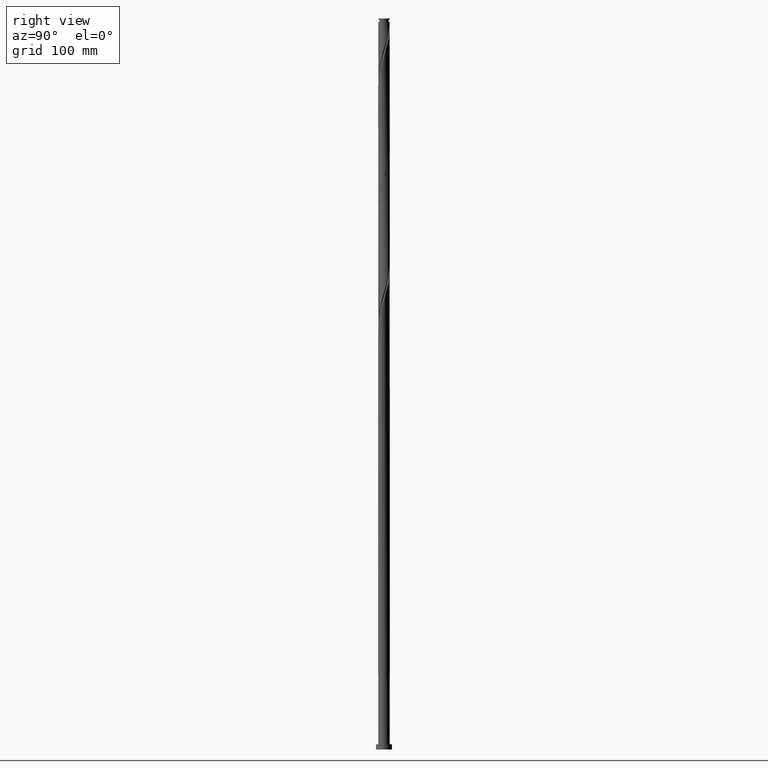
[diagram: clean part render]
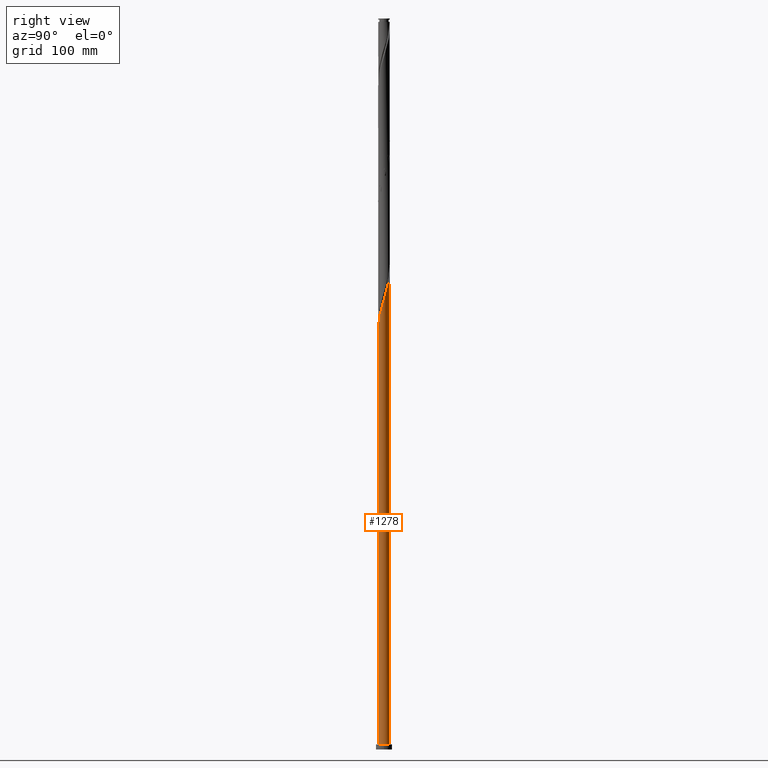
[diagram: same view with one face highlighted and labeled with its STEP entity id]
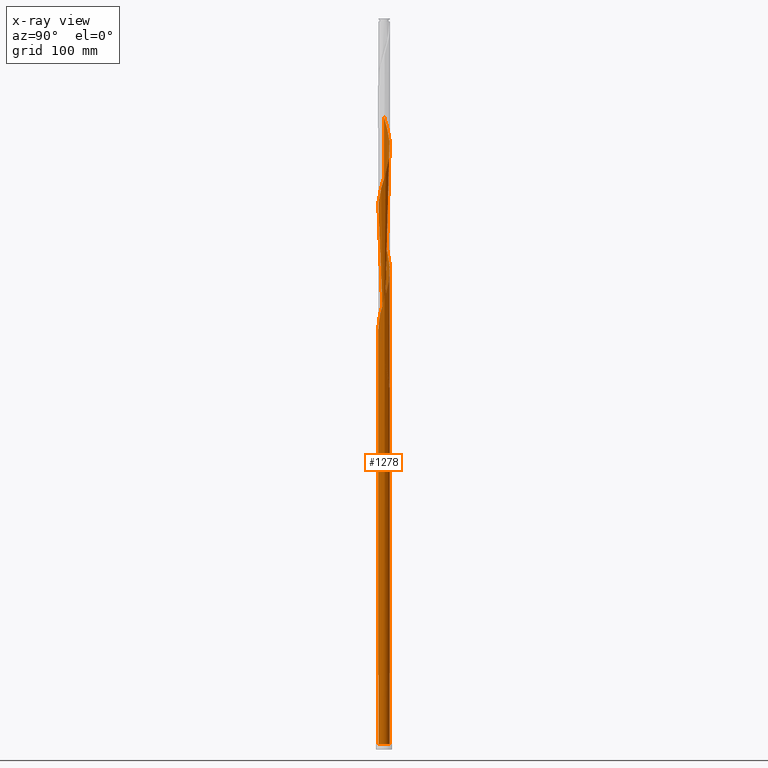
[diagram: x-ray of the same camera — body ghosted, the highlighted face saturated]
A machine part, right view. The second image highlights one B-rep face of the part: STEP entity #1278.
The next image is the same camera in x-ray: the body ghosted, the highlighted face saturated — about 0% of this face is hidden behind the body in this view.
In plain terms, the highlighted cylindrical surface (bore or boss wall) has radius 8 mm, axis along (-0, -0, -1).
Its self-contained STEP definition (entity closure, byte-faithful):
#4 = CARTESIAN_POINT ( 'NONE',  ( 7.992517114178731674, 0.3459337791547519858, 782.7674675760173386 ) ) ;
#6 = CARTESIAN_POINT ( 'NONE',  ( -2.747472284455732883, 7.539748629775563593, 509.8508009093506530 ) ) ;
#14 = CARTESIAN_POINT ( 'NONE',  ( -8.019742693046504556, 0.2830909595560871517, 697.3508009093505962 ) ) ;
#17 = CARTESIAN_POINT ( 'NONE',  ( -5.406950929103490289, 5.896175171267122650, 520.2674675760173386 ) ) ;
#25 = CARTESIAN_POINT ( 'NONE',  ( 4.977749994673999367, -6.262747399546241489, 757.7674675760173386 ) ) ;
#27 = CARTESIAN_POINT ( 'NONE',  ( -2.140821041242097600, 7.708234899727375300, 507.7674675760172249 ) ) ;
#35 = CARTESIAN_POINT ( 'NONE',  ( -0.9086303787922772601, -7.948231931362848890, 736.9341342426841948 ) ) ;
#38 = CARTESIAN_POINT ( 'NONE',  ( -6.964334244145165442, 3.936756093006901214, 528.6008009093508235 ) ) ;
#47 = CARTESIAN_POINT ( 'NONE',  ( -1.591979899370601359, 7.840000000000012292, 828.6008009093507098 ) ) ;
#56 = DIRECTION ( 'NONE',  ( 0.000000000000000000, 0.000000000000000000, 1.000000000000000000 ) ) ;
#61 = CARTESIAN_POINT ( 'NONE',  ( -0.3459337791547515972, 7.992517114178731674, 824.4341342426840811 ) ) ;
#69 = CARTESIAN_POINT ( 'NONE',  ( -7.017122455615809606, 3.893122884901978775, 518.1841342426841948 ) ) ;
#72 = CARTESIAN_POINT ( 'NONE',  ( -5.470638904429729443, 5.870989978819161514, 843.1841342426836263 ) ) ;
#80 = CARTESIAN_POINT ( 'NONE',  ( -8.000000000000000000, 0.000000000000000000, 1000.000000000000000 ) ) ;
#83 = CARTESIAN_POINT ( 'NONE',  ( 6.262747399546241489, 4.977749994673999367, 799.4341342426840811 ) ) ;
#84 = VERTEX_POINT ( 'NONE', #773 ) ;
#108 = CARTESIAN_POINT ( 'NONE',  ( -7.274163668017040507, -3.388651101095541573, 543.1841342426839674 ) ) ;
#124 = CARTESIAN_POINT ( 'NONE',  ( 4.942911879387840379, 6.321711438104537173, 639.0174675760173386 ) ) ;
#136 = CARTESIAN_POINT ( 'NONE',  ( 6.669416946860171613, -4.418017382144912020, 599.4341342426839674 ) ) ;
#148 = CARTESIAN_POINT ( 'NONE',  ( 7.274163668017043172, 3.388651101095537133, 626.5174675760173386 ) ) ;
#160 = CARTESIAN_POINT ( 'NONE',  ( 8.019742693046504556, -0.2830909595560844871, 614.0174675760173386 ) ) ;
#172 = CARTESIAN_POINT ( 'NONE',  ( -3.320297584678860048, -7.278435542695695482, 728.6008009093507098 ) ) ;
#183 = CARTESIAN_POINT ( 'NONE',  ( 7.948231931362848890, -0.9086303787922774822, 778.6008009093505962 ) ) ;
#194 = CARTESIAN_POINT ( 'NONE',  ( -6.262747399546241489, -4.977749994674000256, 716.1008009093507098 ) ) ;
#196 = CARTESIAN_POINT ( 'NONE',  ( -6.262747399546228166, 4.977749994673994038, 524.4341342426840811 ) ) ;
#205 = CARTESIAN_POINT ( 'NONE',  ( 0.3459337791547524854, -7.992517114178731674, 741.1008009093505962 ) ) ;
#207 = CARTESIAN_POINT ( 'NONE',  ( -5.870989978819149080, 5.470638904429722338, 522.3508009093505962 ) ) ;
#216 = CARTESIAN_POINT ( 'NONE',  ( -7.876721169679195889, 1.534169798028466980, 693.1841342426841948 ) ) ;
#224 = CARTESIAN_POINT ( 'NONE',  ( -2.209001280875612760, 7.714708464689061351, 497.3508009093506530 ) ) ;
#227 = CARTESIAN_POINT ( 'NONE',  ( 7.274163668017043172, 3.388651101095537133, 793.1841342426839674 ) ) ;
#235 = CARTESIAN_POINT ( 'NONE',  ( 0.2830909595560848202, 8.019742693046504556, 822.3508009093505962 ) ) ;
#244 = DIRECTION ( 'NONE',  ( -0.000000000000000000, -0.000000000000000000, -1.000000000000000000 ) ) ;
#245 =( BOUNDED_CURVE ( )  B_SPLINE_CURVE ( 2, ( #879, #1017, #1202, #845, #669, #1898, #1225, #108, #513, #1719, #1926, #1389, #1591, #477, #832, #1053, #1768, #680, #2288, #2276, #488, #2116, #343, #1042, #2104, #708, #1544, #318, #1578, #1028, #1754, #1740, #1416, #655, #136, #2299, #859, #1953, #1565, #467, #1181, #160, #500, #1212, #692, #2092, #1942, #148, #869, #1400, #294, #1006, #1364, #124, #1189, #1908, #306, #1729, #1553, #1430, #1962, #1827, #569, #546, #717, #2162, #915, #1094, #353, #1628, #400, #2139, #559, #1990, #1063, #1973, #1620, #1083, #1778, #216, #1259, #14, #739, #1451, #728, #1106, #2003, #375, #2176, #1804, #194, #750, #1269, #1235, #363, #935, #172, #892, #1816, #1649, #35, #390, #205, #1462, #2328, #524, #1072, #1607, #925, #1640, #25, #2150, #2185, #1282, #1441, #1791, #760, #535, #2014, #1249, #183, #905, #4, #2243, #944, #2024, #1152, #227, #1497, #807, #83, #1661, #1881, #2035, #2221, #1850, #1674, #577, #630, #1117, #1520, #235, #61, #1128, #47, #593, #1339, #957, #1509, #455, #798, #72, #2197, #2231, #2066, #1838, #785, #261, #605, #1164, #1315, #980, #272 ),
 .UNSPECIFIED., .F., .T. ) 
 B_SPLINE_CURVE_WITH_KNOTS ( ( 3, 2, 2, 2, 2, 2, 2, 2, 2, 2, 2, 2, 2, 2, 2, 2, 2, 2, 2, 2, 2, 2, 2, 2, 2, 2, 2, 2, 2, 2, 2, 2, 2, 2, 2, 2, 2, 2, 2, 2, 2, 2, 2, 2, 2, 2, 2, 2, 2, 2, 2, 2, 2, 2, 2, 2, 2, 2, 2, 2, 2, 2, 2, 2, 2, 2, 2, 2, 2, 2, 2, 2, 2, 2, 2, 2, 2, 2, 2, 2, 2, 3 ),
 ( 0.05452835374107344035, 0.05625000000000002220, 0.06250000000000000000, 0.06874999999999997780, 0.07499999999999995559, 0.08125000000000004441, 0.08750000000000002220, 0.09375000000000000000, 0.09999999999999997780, 0.1062499999999999556, 0.1125000000000000444, 0.1187500000000000222, 0.1250000000000000000, 0.1312499999999999778, 0.1374999999999999556, 0.1437500000000000444, 0.1500000000000000222, 0.1562500000000000000, 0.1624999999999999778, 0.1687499999999999556, 0.1750000000000000444, 0.1812500000000000222, 0.1875000000000000000, 0.1937499999999999778, 0.1999999999999999556, 0.2062500000000000444, 0.2125000000000000222, 0.2187500000000000000, 0.2249999999999999778, 0.2312499999999999556, 0.2375000000000000444, 0.2437500000000000222, 0.2500000000000000000, 0.2562499999999999778, 0.2624999999999999556, 0.2687500000000000444, 0.2750000000000000222, 0.2812500000000000000, 0.2874999999999999778, 0.2937499999999999556, 0.3000000000000000444, 0.3062500000000000222, 0.3125000000000000000, 0.3187499999999999778, 0.3249999999999999556, 0.3312500000000000444, 0.3375000000000000222, 0.3437500000000000000, 0.3499999999999999778, 0.3562499999999999556, 0.3625000000000000444, 0.3687500000000000222, 0.3750000000000000000, 0.3812499999999999778, 0.3874999999999999556, 0.3937500000000000444, 0.4000000000000000222, 0.4062500000000000000, 0.4124999999999999778, 0.4187499999999999556, 0.4250000000000000444, 0.4312500000000000222, 0.4375000000000000000, 0.4437499999999999778, 0.4499999999999999556, 0.4562500000000000444, 0.4625000000000000222, 0.4687500000000000000, 0.4749999999999999778, 0.4812499999999999556, 0.4875000000000000444, 0.4937500000000000222, 0.5000000000000000000, 0.5062499999999999778, 0.5124999999999999556, 0.5187500000000000444, 0.5250000000000000222, 0.5312500000000000000, 0.5374999999999999778, 0.5437499999999999556, 0.5500000000000000444, 0.5545283537410734542 ),
 .UNSPECIFIED. ) 
 CURVE ( )  GEOMETRIC_REPRESENTATION_ITEM ( )  RATIONAL_B_SPLINE_CURVE ( ( 0.9079722749903149648, 0.9083189438770252755, 0.9090909090909713441, 0.9062884852119967860, 0.9090909090909713441, 0.9062884852119967860, 0.9090909090909713441, 0.9062884852119967860, 0.9090909090909713441, 0.9062884852119967860, 0.9090909090909713441, 0.9062884852119967860, 0.9090909090909713441, 0.9062884852119967860, 0.9090909090909713441, 0.9062884852119967860, 0.9090909090909713441, 0.9062884852119967860, 0.9090909090909713441, 0.9062884852119967860, 0.9090909090909713441, 0.9062884852119967860, 0.9090909090909713441, 0.9062884852119967860, 0.9090909090909713441, 0.9062884852119967860, 0.9090909090909713441, 0.9062884852119967860, 0.9090909090909713441, 0.9062884852119967860, 0.9090909090909713441, 0.9062884852119967860, 0.9090909090909713441, 0.9062884852119967860, 0.9090909090909713441, 0.9062884852119967860, 0.9090909090909713441, 0.9062884852119967860, 0.9090909090909713441, 0.9062884852119967860, 0.9090909090909713441, 0.9062884852119967860, 0.9090909090909713441, 0.9062884852119967860, 0.9090909090909713441, 0.9062884852119967860, 0.9090909090909713441, 0.9062884852119967860, 0.9090909090909713441, 0.9062884852119967860, 0.9090909090909713441, 0.9062884852119967860, 0.9090909090909713441, 0.9062884852119967860, 0.9090909090909713441, 0.9062884852119967860, 0.9090909090909713441, 0.9062884852119967860, 0.9090909090909713441, 0.9062884852119967860, 0.9090909090909713441, 0.9062884852119967860, 0.9090909090909713441, 0.9062884852119967860, 0.9090909090909713441, 0.9062884852119967860, 0.9090909090909713441, 0.9062884852119967860, 0.9090909090909713441, 0.9062884852119967860, 0.9090909090909713441, 0.9062884852119967860, 0.9090909090909713441, 0.9062884852119967860, 0.9090909090909713441, 0.9062884852119967860, 0.9090909090909713441, 0.9062884852119967860, 0.9090909090909713441, 0.9062884852119967860, 0.9090909090909713441, 0.9062884852119967860, 0.9090909090909713441, 0.9062884852119967860, 0.9090909090909713441, 0.9062884852119967860, 0.9090909090909713441, 0.9062884852119967860, 0.9090909090909713441, 0.9062884852119967860, 0.9090909090909713441, 0.9062884852119967860, 0.9090909090909713441, 0.9062884852119967860, 0.9090909090909713441, 0.9062884852119967860, 0.9090909090909713441, 0.9062884852119967860, 0.9090909090909713441, 0.9062884852119967860, 0.9090909090909713441, 0.9062884852119967860, 0.9090909090909713441, 0.9062884852119967860, 0.9090909090909713441, 0.9062884852119967860, 0.9090909090909713441, 0.9062884852119967860, 0.9090909090909713441, 0.9062884852119967860, 0.9090909090909713441, 0.9062884852119967860, 0.9090909090909713441, 0.9062884852119967860, 0.9090909090909713441, 0.9062884852119967860, 0.9090909090909713441, 0.9062884852119967860, 0.9090909090909713441, 0.9062884852119967860, 0.9090909090909713441, 0.9062884852119967860, 0.9090909090909713441, 0.9062884852119967860, 0.9090909090909713441, 0.9062884852119967860, 0.9090909090909713441, 0.9062884852119967860, 0.9090909090909713441, 0.9062884852119967860, 0.9090909090909713441, 0.9062884852119967860, 0.9090909090909713441, 0.9062884852119967860, 0.9090909090909713441, 0.9062884852119967860, 0.9090909090909713441, 0.9062884852119967860, 0.9090909090909713441, 0.9062884852119967860, 0.9090909090909713441, 0.9062884852119967860, 0.9090909090909713441, 0.9062884852119967860, 0.9090909090909713441, 0.9062884852119967860, 0.9090909090909713441, 0.9062884852119967860, 0.9090909090909713441, 0.9062884852119967860, 0.9090909090909713441, 0.9062884852119967860, 0.9090909090909713441, 0.9062884852119967860, 0.9090909090909713441, 0.9062884852119967860, 0.9090909090909713441, 0.9062884852119967860, 0.9090909090909713441, 0.9062884852119967860, 0.9090909090909713441, 0.9070604504259428547, 0.9079722749903149648 ) ) 
 REPRESENTATION_ITEM ( '' )  );
#261 = CARTESIAN_POINT ( 'NONE',  ( -7.539748629775576916, 2.747472284455740432, 855.6841342426839674 ) ) ;
#263 = VERTEX_POINT ( 'NONE', #345 ) ;
#272 = CARTESIAN_POINT ( 'NONE',  ( -8.000000000000015987, 7.910857622599857918E-16, 864.9541893705692246 ) ) ;
#294 = CARTESIAN_POINT ( 'NONE',  ( 6.262747399546241489, 4.977749994673999367, 632.7674675760172249 ) ) ;
#306 = CARTESIAN_POINT ( 'NONE',  ( 3.320297584678860936, 7.278435542695695482, 645.2674675760172249 ) ) ;
#318 = CARTESIAN_POINT ( 'NONE',  ( 3.388651101095540685, -7.274163668017040507, 584.8508009093505962 ) ) ;
#330 = CARTESIAN_POINT ( 'NONE',  ( 0.000000000000000000, 0.000000000000000000, 495.2674675760174523 ) ) ;
#334 = CARTESIAN_POINT ( 'NONE',  ( 0.000000000000000000, 0.000000000000000000, 7.000000000000000000 ) ) ;
#343 = CARTESIAN_POINT ( 'NONE',  ( 0.3459337791547524854, -7.992517114178731674, 574.4341342426840811 ) ) ;
#345 = CARTESIAN_POINT ( 'NONE',  ( -8.000000000000015987, -7.313811764290433909E-15, 531.6208560372360807 ) ) ;
#353 = CARTESIAN_POINT ( 'NONE',  ( -3.936756093006906543, 6.964334244145179653, 670.2674675760174523 ) ) ;
#363 = CARTESIAN_POINT ( 'NONE',  ( -4.418017382144911132, -6.669416946860171613, 724.4341342426840811 ) ) ;
#375 = CARTESIAN_POINT ( 'NONE',  ( -7.274163668017040507, -3.388651101095541573, 709.8508009093508235 ) ) ;
#379 = CARTESIAN_POINT ( 'NONE',  ( -7.274163668017024520, 3.388651101095537577, 530.6841342426838537 ) ) ;
#386 = EDGE_CURVE ( 'NONE', #971, #981, #1932, .T. ) ;
#390 = CARTESIAN_POINT ( 'NONE',  ( -0.2830909595560876513, -8.019742693046504556, 739.0174675760172249 ) ) ;
#393 = CARTESIAN_POINT ( 'NONE',  ( -7.839999999999996305, 1.591979899370602247, 536.9341342426841948 ) ) ;
#400 = CARTESIAN_POINT ( 'NONE',  ( -4.977749994674000256, 6.262747399546241489, 674.4341342426839674 ) ) ;
#402 = CARTESIAN_POINT ( 'NONE',  ( -4.418017382144901362, 6.669416946860160067, 516.1008009093505962 ) ) ;
#436 = DIRECTION ( 'NONE',  ( -1.000000000000000000, 0.000000000000000000, 0.000000000000000000 ) ) ;
#446 = VERTEX_POINT ( 'NONE', #1380 ) ;
#453 = CARTESIAN_POINT ( 'NONE',  ( -7.539748629775576916, 2.747472284455740432, 522.3508009093507098 ) ) ;
#455 = CARTESIAN_POINT ( 'NONE',  ( -4.484861084918269292, 6.654504820273319687, 839.0174675760171112 ) ) ;
#467 = CARTESIAN_POINT ( 'NONE',  ( 7.876721169679195889, -1.534169798028471643, 609.8508009093505962 ) ) ;
#477 = CARTESIAN_POINT ( 'NONE',  ( -4.942911879387842156, -6.321711438104533620, 555.6841342426839674 ) ) ;
#488 = CARTESIAN_POINT ( 'NONE',  ( -0.9086303787922772601, -7.948231931362848890, 570.2674675760172249 ) ) ;
#500 = CARTESIAN_POINT ( 'NONE',  ( 7.992517114178731674, 0.3459337791547519858, 616.1008009093507098 ) ) ;
#510 = AXIS2_PLACEMENT_3D ( 'NONE', #330, #1376, #2313 ) ;
#513 = CARTESIAN_POINT ( 'NONE',  ( -6.964334244145182318, -3.936756093006904766, 545.2674675760174523 ) ) ;
#524 = CARTESIAN_POINT ( 'NONE',  ( 2.209001280875611428, -7.714708464689061351, 747.3508009093507098 ) ) ;
#535 = CARTESIAN_POINT ( 'NONE',  ( 7.539748629775577804, -2.747472284455737768, 772.3508009093505962 ) ) ;
#539 = CARTESIAN_POINT ( 'NONE',  ( -8.000000000000000000, 0.000000000000000000, 7.000000000000000000 ) ) ;
#546 = CARTESIAN_POINT ( 'NONE',  ( -0.9749585178655880702, 7.965291535310963233, 659.8508009093505962 ) ) ;
#549 = CARTESIAN_POINT ( 'NONE',  ( -0.2830909595560845982, 8.019742693046490345, 501.5174675760174523 ) ) ;
#559 = CARTESIAN_POINT ( 'NONE',  ( -5.896175171267131532, 5.406950929103501835, 678.6008009093508235 ) ) ;
#561 = CARTESIAN_POINT ( 'NONE',  ( 1.591979899370603579, 7.839999999999998082, 495.2674675760173386 ) ) ;
#569 = CARTESIAN_POINT ( 'NONE',  ( -0.3459337791547515972, 7.992517114178731674, 657.7674675760173386 ) ) ;
#574 = CARTESIAN_POINT ( 'NONE',  ( -4.977749994674000256, 6.262747399546241489, 507.7674675760173386 ) ) ;
#577 = CARTESIAN_POINT ( 'NONE',  ( 2.747472284455738212, 7.539748629775577804, 814.0174675760173386 ) ) ;
#593 = CARTESIAN_POINT ( 'NONE',  ( -2.209001280875612760, 7.714708464689061351, 830.6841342426840811 ) ) ;
#605 = CARTESIAN_POINT ( 'NONE',  ( -7.708234899727388623, 2.140821041242104261, 857.7674675760174523 ) ) ;
#606 = VERTEX_POINT ( 'NONE', #1546 ) ;
#612 = CARTESIAN_POINT ( 'NONE',  ( -7.948231931362848890, 0.9086303787922768160, 528.6008009093507098 ) ) ;
#626 = EDGE_CURVE ( 'NONE', #1974, #84, #2163, .T. ) ;
#628 = CARTESIAN_POINT ( 'NONE',  ( -3.388651101095541573, 7.274163668017040507, 501.5174675760174523 ) ) ;
#630 = CARTESIAN_POINT ( 'NONE',  ( 2.140821041242105593, 7.708234899727388623, 816.1008009093509372 ) ) ;
#655 = CARTESIAN_POINT ( 'NONE',  ( 6.321711438104533620, -4.942911879387843044, 597.3508009093505962 ) ) ;
#669 = CARTESIAN_POINT ( 'NONE',  ( -7.840000000000012292, -1.591979899370602913, 536.9341342426840811 ) ) ;
#680 = CARTESIAN_POINT ( 'NONE',  ( -2.747472284455740432, -7.539748629775576916, 564.0174675760173386 ) ) ;
#692 = CARTESIAN_POINT ( 'NONE',  ( 7.840000000000012292, 1.591979899370601803, 620.2674675760174523 ) ) ;
#708 = CARTESIAN_POINT ( 'NONE',  ( 2.209001280875611428, -7.714708464689061351, 580.6841342426840811 ) ) ;
#710 = DIRECTION ( 'NONE',  ( 1.000000000000000000, 0.000000000000000000, 0.000000000000000000 ) ) ;
#717 = CARTESIAN_POINT ( 'NONE',  ( -1.591979899370601359, 7.840000000000012292, 661.9341342426839674 ) ) ;
#728 = CARTESIAN_POINT ( 'NONE',  ( -7.840000000000012292, -1.591979899370602913, 703.6008009093504825 ) ) ;
#739 = CARTESIAN_POINT ( 'NONE',  ( -7.992517114178733451, -0.3459337791547530960, 699.4341342426841948 ) ) ;
#743 = CARTESIAN_POINT ( 'NONE',  ( -3.893122884901969893, 7.017122455615797172, 514.0174675760173386 ) ) ;
#750 = CARTESIAN_POINT ( 'NONE',  ( -5.870989978819161514, -5.470638904429729443, 718.1841342426840811 ) ) ;
#760 = CARTESIAN_POINT ( 'NONE',  ( 7.278435542695695482, -3.320297584678860048, 770.2674675760173386 ) ) ;
#773 = CARTESIAN_POINT ( 'NONE',  ( 1.591979899370603579, 7.839999999999998082, 495.2674675760173386 ) ) ;
#778 = CIRCLE ( 'NONE', #2089, 8.000000000000000000 ) ;
#785 = CARTESIAN_POINT ( 'NONE',  ( -7.278435542695695482, 3.320297584678859160, 853.6008009093507098 ) ) ;
#794 = CARTESIAN_POINT ( 'NONE',  ( -7.278435542695695482, 3.320297584678859160, 520.2674675760173386 ) ) ;
#798 = CARTESIAN_POINT ( 'NONE',  ( -4.977749994674000256, 6.262747399546241489, 841.1008009093508235 ) ) ;
#807 = CARTESIAN_POINT ( 'NONE',  ( 6.654504820273318799, 4.484861084918271068, 797.3508009093508235 ) ) ;
#809 = ORIENTED_EDGE ( 'NONE', *, *, #2106, .T. ) ;
#832 = CARTESIAN_POINT ( 'NONE',  ( -4.418017382144911132, -6.669416946860171613, 557.7674675760174523 ) ) ;
#845 = CARTESIAN_POINT ( 'NONE',  ( -7.965291535310963233, -0.9749585178655929552, 534.8508009093507098 ) ) ;
#859 = CARTESIAN_POINT ( 'NONE',  ( 7.278435542695695482, -3.320297584678860048, 603.6008009093507098 ) ) ;
#869 = CARTESIAN_POINT ( 'NONE',  ( 6.964334244145182318, 3.936756093006904766, 628.6008009093507098 ) ) ;
#879 = CARTESIAN_POINT ( 'NONE',  ( -8.000000000000015987, -7.313811764290433909E-15, 531.6208560372360807 ) ) ;
#892 = CARTESIAN_POINT ( 'NONE',  ( -2.747472284455740432, -7.539748629775576916, 730.6841342426838537 ) ) ;
#894 = CARTESIAN_POINT ( 'NONE',  ( -3.320297584678852942, 7.278435542695680383, 511.9341342426839674 ) ) ;
#905 = CARTESIAN_POINT ( 'NONE',  ( 8.019742693046504556, -0.2830909595560844871, 780.6841342426840811 ) ) ;
#915 = CARTESIAN_POINT ( 'NONE',  ( -2.798826190985576723, 7.494436066353052261, 666.1008009093507098 ) ) ;
#917 = CARTESIAN_POINT ( 'NONE',  ( -8.000000000000000000, 0.1730478206451126766, 541.6734001380656309 ) ) ;
#925 = CARTESIAN_POINT ( 'NONE',  ( 3.936756093006904766, -6.964334244145182318, 753.6008009093508235 ) ) ;
#935 = CARTESIAN_POINT ( 'NONE',  ( -3.893122884901979663, -7.017122455615809606, 726.5174675760173386 ) ) ;
#944 = CARTESIAN_POINT ( 'NONE',  ( 7.840000000000012292, 1.591979899370601803, 786.9341342426840811 ) ) ;
#957 = CARTESIAN_POINT ( 'NONE',  ( -3.388651101095541573, 7.274163668017040507, 834.8508009093505962 ) ) ;
#971 = VERTEX_POINT ( 'NONE', #539 ) ;
#977 = LINE ( 'NONE', #80, #1292 ) ;
#980 = CARTESIAN_POINT ( 'NONE',  ( -8.000000000000015987, 0.4557898995714561585, 863.4423008522245482 ) ) ;
#981 = VERTEX_POINT ( 'NONE', #1251 ) ;
#989 = LINE ( 'NONE', #1291, #1107 ) ;
#1004 = ORIENTED_EDGE ( 'NONE', *, *, #386, .T. ) ;
#1006 = CARTESIAN_POINT ( 'NONE',  ( 5.870989978819165067, 5.470638904429725891, 634.8508009093507098 ) ) ;
#1017 = CARTESIAN_POINT ( 'NONE',  ( -8.000000000000015987, -0.1730478206450980494, 532.1948683473025312 ) ) ;
#1028 = CARTESIAN_POINT ( 'NONE',  ( 4.484861084918268403, -6.654504820273320576, 589.0174675760173386 ) ) ;
#1042 = CARTESIAN_POINT ( 'NONE',  ( 0.9749585178655925111, -7.965291535310963233, 576.5174675760174523 ) ) ;
#1053 = CARTESIAN_POINT ( 'NONE',  ( -3.893122884901979663, -7.017122455615809606, 559.8508009093507098 ) ) ;
#1063 = CARTESIAN_POINT ( 'NONE',  ( -6.669416946860171613, 4.418017382144911132, 682.7674675760175660 ) ) ;
#1072 = CARTESIAN_POINT ( 'NONE',  ( 2.798826190985576279, -7.494436066353052261, 749.4341342426838537 ) ) ;
#1073 = ORIENTED_EDGE ( 'NONE', *, *, #1723, .T. ) ;
#1083 = CARTESIAN_POINT ( 'NONE',  ( -7.539748629775576916, 2.747472284455740432, 689.0174675760172249 ) ) ;
#1094 = CARTESIAN_POINT ( 'NONE',  ( -3.388651101095541573, 7.274163668017040507, 668.1841342426839674 ) ) ;
#1096 = CARTESIAN_POINT ( 'NONE',  ( -7.714708464689045364, 2.209001280875610540, 534.8508009093505962 ) ) ;
#1106 = CARTESIAN_POINT ( 'NONE',  ( -7.714708464689061351, -2.209001280875612316, 705.6841342426839674 ) ) ;
#1107 = VECTOR ( 'NONE', #1861, 1000.000000000000000 ) ;
#1110 = CARTESIAN_POINT ( 'NONE',  ( -0.9086303787922734854, 7.948231931362837344, 503.6008009093506530 ) ) ;
#1117 = CARTESIAN_POINT ( 'NONE',  ( 1.534169798028471865, 7.876721169679195889, 818.1841342426837400 ) ) ;
#1128 = CARTESIAN_POINT ( 'NONE',  ( -0.9749585178655880702, 7.965291535310963233, 826.5174675760174523 ) ) ;
#1149 = CARTESIAN_POINT ( 'NONE',  ( -8.000000000000015987, -7.313811764290433909E-15, 531.6208560372360807 ) ) ;
#1152 = CARTESIAN_POINT ( 'NONE',  ( 7.494436066353052261, 2.798826190985576279, 791.1008009093505962 ) ) ;
#1164 = CARTESIAN_POINT ( 'NONE',  ( -7.876721169679195889, 1.534169798028466980, 859.8508009093503688 ) ) ;
#1168 = CARTESIAN_POINT ( 'NONE',  ( 0.000000000000000000, 0.000000000000000000, 1000.000000000000000 ) ) ;
#1181 = CARTESIAN_POINT ( 'NONE',  ( 7.948231931362848890, -0.9086303787922774822, 611.9341342426838537 ) ) ;
#1189 = CARTESIAN_POINT ( 'NONE',  ( 4.418017382144912020, 6.669416946860170725, 641.1008009093505962 ) ) ;
#1202 = CARTESIAN_POINT ( 'NONE',  ( -7.992517114178733451, -0.3459337791547530960, 532.7674675760175660 ) ) ;
#1212 = CARTESIAN_POINT ( 'NONE',  ( 7.965291535310963233, 0.9749585178655886253, 618.1841342426839674 ) ) ;
#1225 = CARTESIAN_POINT ( 'NONE',  ( -7.494436066353052261, -2.798826190985576723, 541.1008009093505962 ) ) ;
#1235 = CARTESIAN_POINT ( 'NONE',  ( -4.942911879387842156, -6.321711438104533620, 722.3508009093505962 ) ) ;
#1249 = CARTESIAN_POINT ( 'NONE',  ( 7.876721169679195889, -1.534169798028471643, 776.5174675760174523 ) ) ;
#1251 = CARTESIAN_POINT ( 'NONE',  ( 8.000000000000000000, 0.000000000000000000, 7.000000000000000000 ) ) ;
#1256 = AXIS2_PLACEMENT_3D ( 'NONE', #1168, #1884, #436 ) ;
#1259 = CARTESIAN_POINT ( 'NONE',  ( -7.948231931362848890, 0.9086303787922768160, 695.2674675760173386 ) ) ;
#1269 = CARTESIAN_POINT ( 'NONE',  ( -5.406950929103502723, -5.896175171267131532, 720.2674675760172249 ) ) ;
#1278 = ADVANCED_FACE ( 'NONE', ( #1514 ), #2060, .T. ) ;
#1282 = CARTESIAN_POINT ( 'NONE',  ( 6.321711438104533620, -4.942911879387843044, 764.0174675760173386 ) ) ;
#1291 = CARTESIAN_POINT ( 'NONE',  ( -8.000000000000000000, 0.000000000000000000, 1000.000000000000000 ) ) ;
#1292 = VECTOR ( 'NONE', #244, 1000.000000000000000 ) ;
#1315 = CARTESIAN_POINT ( 'NONE',  ( -7.948231931362848890, 0.9086303787922768160, 861.9341342426839674 ) ) ;
#1336 = CARTESIAN_POINT ( 'NONE',  ( -4.484861084918269292, 6.654504820273319687, 505.6841342426840811 ) ) ;
#1339 = CARTESIAN_POINT ( 'NONE',  ( -2.798826190985576723, 7.494436066353052261, 832.7674675760173386 ) ) ;
#1364 = CARTESIAN_POINT ( 'NONE',  ( 5.406950929103504500, 5.896175171267130644, 636.9341342426840811 ) ) ;
#1376 = DIRECTION ( 'NONE',  ( 0.000000000000000000, -1.734723475976808672E-14, -1.000000000000000000 ) ) ;
#1380 = CARTESIAN_POINT ( 'NONE',  ( -1.591979899370601359, 7.840000000000014069, 495.2674675760173386 ) ) ;
#1389 = CARTESIAN_POINT ( 'NONE',  ( -5.870989978819161514, -5.470638904429729443, 551.5174675760173386 ) ) ;
#1400 = CARTESIAN_POINT ( 'NONE',  ( 6.654504820273318799, 4.484861084918271068, 630.6841342426839674 ) ) ;
#1416 = CARTESIAN_POINT ( 'NONE',  ( 5.896175171267131532, -5.406950929103502723, 595.2674675760174523 ) ) ;
#1430 = CARTESIAN_POINT ( 'NONE',  ( 1.534169798028471865, 7.876721169679195889, 651.5174675760171112 ) ) ;
#1441 = CARTESIAN_POINT ( 'NONE',  ( 6.669416946860171613, -4.418017382144912020, 766.1008009093509372 ) ) ;
#1451 = CARTESIAN_POINT ( 'NONE',  ( -7.965291535310963233, -0.9749585178655929552, 701.5174675760176797 ) ) ;
#1462 = CARTESIAN_POINT ( 'NONE',  ( 0.9749585178655925111, -7.965291535310963233, 743.1841342426840811 ) ) ;
#1469 = CARTESIAN_POINT ( 'NONE',  ( -5.896175171267131532, 5.406950929103501835, 511.9341342426840242 ) ) ;
#1482 = CARTESIAN_POINT ( 'NONE',  ( -2.798826190985576723, 7.494436066353052261, 499.4341342426840242 ) ) ;
#1497 = CARTESIAN_POINT ( 'NONE',  ( 6.964334244145182318, 3.936756093006904766, 795.2674675760174523 ) ) ;
#1498 = EDGE_LOOP ( 'NONE', ( #1829, #2210, #1073, #1004, #809, #1609, #1793, #2037, #1511 ) ) ;
#1505 = CARTESIAN_POINT ( 'NONE',  ( -5.470638904429729443, 5.870989978819161514, 509.8508009093507667 ) ) ;
#1509 = CARTESIAN_POINT ( 'NONE',  ( -3.936756093006906543, 6.964334244145179653, 836.9341342426838537 ) ) ;
#1511 = ORIENTED_EDGE ( 'NONE', *, *, #626, .F. ) ;
#1514 = FACE_OUTER_BOUND ( 'NONE', #1498, .T. ) ;
#1518 = DIRECTION ( 'NONE',  ( 1.000000000000000000, 0.000000000000000000, 0.000000000000000000 ) ) ;
#1520 = CARTESIAN_POINT ( 'NONE',  ( 0.9086303787922784814, 7.948231931362848890, 820.2674675760173386 ) ) ;
#1544 = CARTESIAN_POINT ( 'NONE',  ( 2.798826190985576279, -7.494436066353052261, 582.7674675760173386 ) ) ;
#1546 = CARTESIAN_POINT ( 'NONE',  ( -8.000000000000015987, 7.910857622599857918E-16, 864.9541893705692246 ) ) ;
#1553 = CARTESIAN_POINT ( 'NONE',  ( 2.140821041242105593, 7.708234899727388623, 649.4341342426843084 ) ) ;
#1565 = CARTESIAN_POINT ( 'NONE',  ( 7.708234899727388623, -2.140821041242105149, 607.7674675760174523 ) ) ;
#1578 = CARTESIAN_POINT ( 'NONE',  ( 3.936756093006904766, -6.964334244145182318, 586.9341342426840811 ) ) ;
#1583 = DIRECTION ( 'NONE',  ( 0.000000000000000000, 0.000000000000000000, 1.000000000000000000 ) ) ;
#1591 = CARTESIAN_POINT ( 'NONE',  ( -5.406950929103502723, -5.896175171267131532, 553.6008009093507098 ) ) ;
#1607 = CARTESIAN_POINT ( 'NONE',  ( 3.388651101095540685, -7.274163668017040507, 751.5174675760172249 ) ) ;
#1609 = ORIENTED_EDGE ( 'NONE', *, *, #1723, .F. ) ;
#1611 = CARTESIAN_POINT ( 'NONE',  ( 0.3459337791547542618, 7.992517114178720128, 499.4341342426839674 ) ) ;
#1620 = CARTESIAN_POINT ( 'NONE',  ( -7.278435542695695482, 3.320297584678859160, 686.9341342426838537 ) ) ;
#1628 = CARTESIAN_POINT ( 'NONE',  ( -4.484861084918269292, 6.654504820273319687, 672.3508009093504825 ) ) ;
#1640 = CARTESIAN_POINT ( 'NONE',  ( 4.484861084918268403, -6.654504820273320576, 755.6841342426837400 ) ) ;
#1642 = CARTESIAN_POINT ( 'NONE',  ( -6.654504820273304588, 4.484861084918263963, 526.5174675760172249 ) ) ;
#1649 = CARTESIAN_POINT ( 'NONE',  ( -1.534169798028466980, -7.876721169679195889, 734.8508009093504825 ) ) ;
#1653 = EDGE_CURVE ( 'NONE', #446, #84, #1708, .T. ) ;
#1656 = EDGE_CURVE ( 'NONE', #263, #606, #245, .T. ) ;
#1661 = CARTESIAN_POINT ( 'NONE',  ( 5.870989978819165067, 5.470638904429725891, 801.5174675760173386 ) ) ;
#1670 = CARTESIAN_POINT ( 'NONE',  ( 0.000000000000000000, 0.000000000000000000, 7.000000000000000000 ) ) ;
#1674 = CARTESIAN_POINT ( 'NONE',  ( 3.320297584678860936, 7.278435542695695482, 811.9341342426840811 ) ) ;
#1682 = CARTESIAN_POINT ( 'NONE',  ( -6.669416946860171613, 4.418017382144911132, 516.1008009093505962 ) ) ;
#1708 = CIRCLE ( 'NONE', #510, 8.000000000000000000 ) ;
#1719 = CARTESIAN_POINT ( 'NONE',  ( -6.654504820273320576, -4.484861084918269292, 547.3508009093504825 ) ) ;
#1723 = EDGE_CURVE ( 'NONE', #263, #971, #989, .T. ) ;
#1729 = CARTESIAN_POINT ( 'NONE',  ( 2.747472284455738212, 7.539748629775577804, 647.3508009093504825 ) ) ;
#1740 = CARTESIAN_POINT ( 'NONE',  ( 5.470638904429729443, -5.870989978819161514, 593.1841342426840811 ) ) ;
#1754 = CARTESIAN_POINT ( 'NONE',  ( 4.977749994673999367, -6.262747399546241489, 591.1008009093508235 ) ) ;
#1768 = CARTESIAN_POINT ( 'NONE',  ( -3.320297584678860048, -7.278435542695695482, 561.9341342426841948 ) ) ;
#1778 = CARTESIAN_POINT ( 'NONE',  ( -7.708234899727388623, 2.140821041242104261, 691.1008009093505962 ) ) ;
#1791 = CARTESIAN_POINT ( 'NONE',  ( 7.017122455615807830, -3.893122884901982772, 768.1841342426841948 ) ) ;
#1793 = ORIENTED_EDGE ( 'NONE', *, *, #2252, .F. ) ;
#1804 = CARTESIAN_POINT ( 'NONE',  ( -6.654504820273320576, -4.484861084918269292, 714.0174675760171112 ) ) ;
#1806 = CARTESIAN_POINT ( 'NONE',  ( -4.942911879387833274, 6.321711438104524738, 518.1841342426840811 ) ) ;
#1814 = AXIS2_PLACEMENT_3D ( 'NONE', #334, #1583, #710 ) ;
#1816 = CARTESIAN_POINT ( 'NONE',  ( -2.140821041242104705, -7.708234899727388623, 732.7674675760175660 ) ) ;
#1819 = CARTESIAN_POINT ( 'NONE',  ( -7.494436066353039827, 2.798826190985574502, 532.7674675760174523 ) ) ;
#1827 = CARTESIAN_POINT ( 'NONE',  ( 0.2830909595560848202, 8.019742693046504556, 655.6841342426838537 ) ) ;
#1828 =( BOUNDED_CURVE ( )  B_SPLINE_CURVE ( 2, ( #2240, #224, #1482, #628, #2044, #1336, #574, #1505, #1469, #2064, #1682, #69, #794, #453, #2031, #2228, #612, #2054, #1149 ),
 .UNSPECIFIED., .F., .T. ) 
 B_SPLINE_CURVE_WITH_KNOTS ( ( 3, 2, 2, 2, 2, 2, 2, 2, 2, 3 ),
 ( 0.000000000000000000, 0.006249999999999977796, 0.01249999999999995559, 0.01875000000000004441, 0.02500000000000002220, 0.03125000000000000000, 0.03749999999999997780, 0.04374999999999995559, 0.05000000000000004441, 0.05452835374107343341 ),
 .UNSPECIFIED. ) 
 CURVE ( )  GEOMETRIC_REPRESENTATION_ITEM ( )  RATIONAL_B_SPLINE_CURVE ( ( 0.9090909090909713441, 0.9062884852119967860, 0.9090909090909713441, 0.9062884852119967860, 0.9090909090909713441, 0.9062884852119967860, 0.9090909090909713441, 0.9062884852119967860, 0.9090909090909713441, 0.9062884852119967860, 0.9090909090909713441, 0.9062884852119967860, 0.9090909090909713441, 0.9062884852119967860, 0.9090909090909713441, 0.9062884852119967860, 0.9090909090909713441, 0.9070604504259428547, 0.9079722749903149648 ) ) 
 REPRESENTATION_ITEM ( '' )  );
#1829 = ORIENTED_EDGE ( 'NONE', *, *, #2077, .F. ) ;
#1831 = CARTESIAN_POINT ( 'NONE',  ( 0.9749585178655932882, 7.965291535310948134, 497.3508009093505962 ) ) ;
#1838 = CARTESIAN_POINT ( 'NONE',  ( -7.017122455615809606, 3.893122884901978775, 851.5174675760171112 ) ) ;
#1850 = CARTESIAN_POINT ( 'NONE',  ( 3.893122884901982772, 7.017122455615806942, 809.8508009093507098 ) ) ;
#1861 = DIRECTION ( 'NONE',  ( -0.000000000000000000, -0.000000000000000000, -1.000000000000000000 ) ) ;
#1881 = CARTESIAN_POINT ( 'NONE',  ( 5.406950929103504500, 5.896175171267130644, 803.6008009093505962 ) ) ;
#1884 = DIRECTION ( 'NONE',  ( -0.000000000000000000, -0.000000000000000000, -1.000000000000000000 ) ) ;
#1898 = CARTESIAN_POINT ( 'NONE',  ( -7.714708464689061351, -2.209001280875612316, 539.0174675760172249 ) ) ;
#1908 = CARTESIAN_POINT ( 'NONE',  ( 3.893122884901982772, 7.017122455615806942, 643.1841342426840811 ) ) ;
#1926 = CARTESIAN_POINT ( 'NONE',  ( -6.262747399546241489, -4.977749994674000256, 549.4341342426841948 ) ) ;
#1932 = CIRCLE ( 'NONE', #1814, 8.000000000000000000 ) ;
#1942 = CARTESIAN_POINT ( 'NONE',  ( 7.494436066353052261, 2.798826190985576279, 624.4341342426839674 ) ) ;
#1953 = CARTESIAN_POINT ( 'NONE',  ( 7.539748629775577804, -2.747472284455737768, 605.6841342426839674 ) ) ;
#1962 = CARTESIAN_POINT ( 'NONE',  ( 0.9086303787922784814, 7.948231931362848890, 653.6008009093507098 ) ) ;
#1973 = CARTESIAN_POINT ( 'NONE',  ( -7.017122455615809606, 3.893122884901978775, 684.8508009093508235 ) ) ;
#1974 = VERTEX_POINT ( 'NONE', #2159 ) ;
#1990 = CARTESIAN_POINT ( 'NONE',  ( -6.321711438104534508, 4.942911879387842156, 680.6841342426840811 ) ) ;
#1994 = CARTESIAN_POINT ( 'NONE',  ( -7.965291535310948134, 0.9749585178655936213, 539.0174675760171112 ) ) ;
#2003 = CARTESIAN_POINT ( 'NONE',  ( -7.494436066353052261, -2.798826190985576723, 707.7674675760173386 ) ) ;
#2005 = CARTESIAN_POINT ( 'NONE',  ( -8.000000000000000000, 9.731847490443674520E-15, 542.2474124481318540 ) ) ;
#2014 = CARTESIAN_POINT ( 'NONE',  ( 7.708234899727388623, -2.140821041242105149, 774.4341342426839674 ) ) ;
#2024 = CARTESIAN_POINT ( 'NONE',  ( 7.714708464689061351, 2.209001280875614981, 789.0174675760174523 ) ) ;
#2031 = CARTESIAN_POINT ( 'NONE',  ( -7.708234899727388623, 2.140821041242104261, 524.4341342426840811 ) ) ;
#2035 = CARTESIAN_POINT ( 'NONE',  ( 4.942911879387840379, 6.321711438104537173, 805.6841342426840811 ) ) ;
#2037 = ORIENTED_EDGE ( 'NONE', *, *, #1653, .T. ) ;
#2044 = CARTESIAN_POINT ( 'NONE',  ( -3.936756093006906543, 6.964334244145179653, 503.6008009093506530 ) ) ;
#2054 = CARTESIAN_POINT ( 'NONE',  ( -8.000000000000015987, 0.4557898995714577128, 530.1089675188911770 ) ) ;
#2060 = CYLINDRICAL_SURFACE ( 'NONE', #1256, 8.000000000000000000 ) ;
#2064 = CARTESIAN_POINT ( 'NONE',  ( -6.321711438104534508, 4.942911879387842156, 514.0174675760174523 ) ) ;
#2066 = CARTESIAN_POINT ( 'NONE',  ( -6.669416946860171613, 4.418017382144911132, 849.4341342426839674 ) ) ;
#2077 = EDGE_CURVE ( 'NONE', #606, #1974, #977, .T. ) ;
#2089 = AXIS2_PLACEMENT_3D ( 'NONE', #1670, #56, #1518 ) ;
#2092 = CARTESIAN_POINT ( 'NONE',  ( 7.714708464689061351, 2.209001280875614981, 622.3508009093505962 ) ) ;
#2104 = CARTESIAN_POINT ( 'NONE',  ( 1.591979899370602247, -7.840000000000012292, 578.6008009093503688 ) ) ;
#2106 = EDGE_CURVE ( 'NONE', #981, #971, #778, .T. ) ;
#2116 = CARTESIAN_POINT ( 'NONE',  ( -0.2830909595560876513, -8.019742693046504556, 572.3508009093505962 ) ) ;
#2139 = CARTESIAN_POINT ( 'NONE',  ( -5.470638904429729443, 5.870989978819161514, 676.5174675760173386 ) ) ;
#2150 = CARTESIAN_POINT ( 'NONE',  ( 5.470638904429729443, -5.870989978819161514, 759.8508009093507098 ) ) ;
#2159 = CARTESIAN_POINT ( 'NONE',  ( -8.000000000000000000, 9.731847490443674520E-15, 542.2474124481318540 ) ) ;
#2162 = CARTESIAN_POINT ( 'NONE',  ( -2.209001280875612760, 7.714708464689061351, 664.0174675760171112 ) ) ;
#2163 =( BOUNDED_CURVE ( )  B_SPLINE_CURVE ( 2, ( #2005, #917, #2201, #1994, #393, #1096, #1819, #379, #38, #1642, #196, #207, #17, #1806, #402, #743, #894, #6, #27, #2165, #1110, #549, #1611, #1831, #561 ),
 .UNSPECIFIED., .F., .T. ) 
 B_SPLINE_CURVE_WITH_KNOTS ( ( 3, 2, 2, 2, 2, 2, 2, 2, 2, 2, 2, 2, 3 ),
 ( 0.9295283537410735653, 0.9312500000000000222, 0.9375000000000000000, 0.9437499999999999778, 0.9499999999999999556, 0.9562500000000000444, 0.9625000000000000222, 0.9687500000000000000, 0.9749999999999999778, 0.9812499999999999556, 0.9875000000000000444, 0.9937500000000000222, 1.000000000000000000 ),
 .UNSPECIFIED. ) 
 CURVE ( )  GEOMETRIC_REPRESENTATION_ITEM ( )  RATIONAL_B_SPLINE_CURVE ( ( 0.9079722749903078594, 0.9083189438770181701, 0.9090909090909642387, 0.9062884852119895696, 0.9090909090909642387, 0.9062884852119895696, 0.9090909090909642387, 0.9062884852119895696, 0.9090909090909642387, 0.9062884852119895696, 0.9090909090909642387, 0.9062884852119895696, 0.9090909090909642387, 0.9062884852119895696, 0.9090909090909642387, 0.9062884852119895696, 0.9090909090909642387, 0.9062884852119895696, 0.9090909090909642387, 0.9062884852119895696, 0.9090909090909642387, 0.9062884852119895696, 0.9090909090909642387, 0.9062884852119895696, 0.9090909090909642387 ) ) 
 REPRESENTATION_ITEM ( '' )  );
#2165 = CARTESIAN_POINT ( 'NONE',  ( -1.534169798028462317, 7.876721169679182566, 505.6841342426840811 ) ) ;
#2176 = CARTESIAN_POINT ( 'NONE',  ( -6.964334244145182318, -3.936756093006904766, 711.9341342426840811 ) ) ;
#2185 = CARTESIAN_POINT ( 'NONE',  ( 5.896175171267131532, -5.406950929103502723, 761.9341342426837400 ) ) ;
#2197 = CARTESIAN_POINT ( 'NONE',  ( -5.896175171267131532, 5.406950929103501835, 845.2674675760173386 ) ) ;
#2201 = CARTESIAN_POINT ( 'NONE',  ( -7.992517114178720128, 0.3459337791547547059, 541.1008009093508235 ) ) ;
#2210 = ORIENTED_EDGE ( 'NONE', *, *, #1656, .F. ) ;
#2221 = CARTESIAN_POINT ( 'NONE',  ( 4.418017382144912020, 6.669416946860170725, 807.7674675760171112 ) ) ;
#2228 = CARTESIAN_POINT ( 'NONE',  ( -7.876721169679195889, 1.534169798028466980, 526.5174675760173386 ) ) ;
#2231 = CARTESIAN_POINT ( 'NONE',  ( -6.321711438104534508, 4.942911879387842156, 847.3508009093505962 ) ) ;
#2240 = CARTESIAN_POINT ( 'NONE',  ( -1.591979899370601359, 7.840000000000014069, 495.2674675760173386 ) ) ;
#2243 = CARTESIAN_POINT ( 'NONE',  ( 7.965291535310963233, 0.9749585178655886253, 784.8508009093507098 ) ) ;
#2252 = EDGE_CURVE ( 'NONE', #446, #263, #1828, .T. ) ;
#2276 = CARTESIAN_POINT ( 'NONE',  ( -1.534169798028466980, -7.876721169679195889, 568.1841342426840811 ) ) ;
#2288 = CARTESIAN_POINT ( 'NONE',  ( -2.140821041242104705, -7.708234899727388623, 566.1008009093508235 ) ) ;
#2299 = CARTESIAN_POINT ( 'NONE',  ( 7.017122455615807830, -3.893122884901982772, 601.5174675760172249 ) ) ;
#2313 = DIRECTION ( 'NONE',  ( 0.000000000000000000, 1.000000000000000000, -2.081668171172168513E-14 ) ) ;
#2328 = CARTESIAN_POINT ( 'NONE',  ( 1.591979899370602247, -7.840000000000012292, 745.2674675760174523 ) ) ;